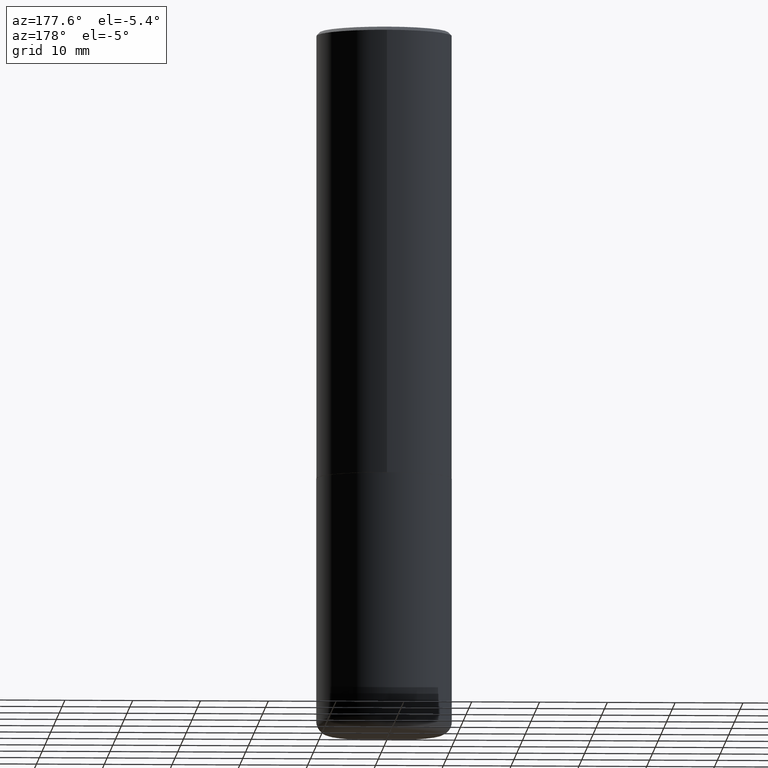
[diagram: clean part render]
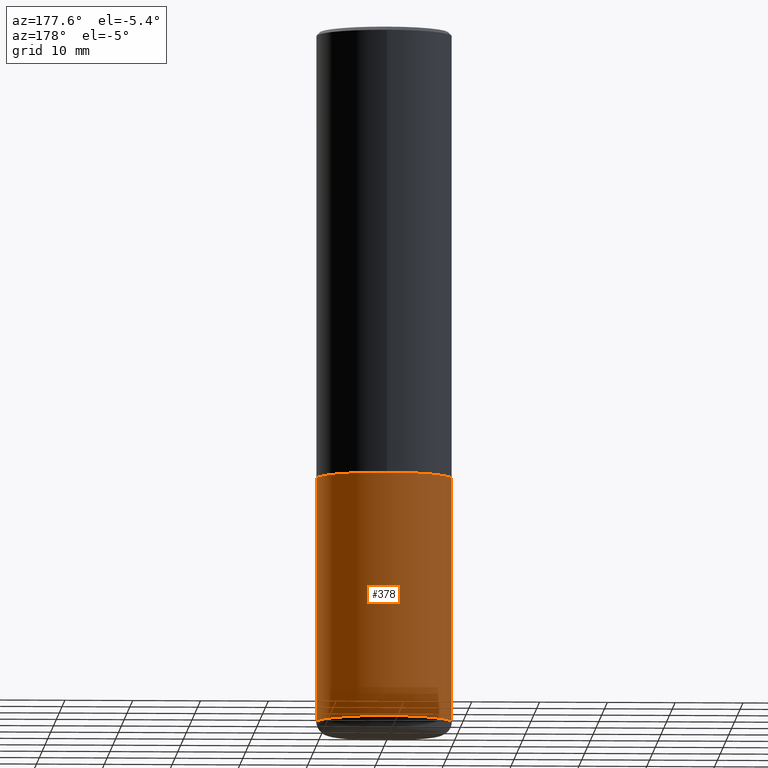
[diagram: same view with one face highlighted and labeled with its STEP entity id]
A machine part, auxiliary view. The second image highlights one B-rep face of the part: STEP entity #378.
In plain terms, the highlighted cylindrical surface (partial cylindrical patch) has radius 10 mm, axis along (-0, 0, 1).
Its self-contained STEP definition (entity closure, byte-faithful):
#10 = DIRECTION ( 'NONE',  ( -2.445468806185136877E-29, 3.491481338843145188E-15, 1.000000000000000000 ) ) ;
#11 = AXIS2_PLACEMENT_3D ( 'NONE', #54, #360, #122 ) ;
#12 = LINE ( 'NONE', #38, #92 ) ;
#15 = VECTOR ( 'NONE', #397, 39.37007874015748143 ) ;
#20 = ORIENTED_EDGE ( 'NONE', *, *, #222, .T. ) ;
#26 = CARTESIAN_POINT ( 'NONE',  ( -0.3937000000000000499, -8.749271185000653235E-15, -2.598400000000000265 ) ) ;
#27 = CIRCLE ( 'NONE', #74, 0.3937000000000000499 ) ;
#38 = CARTESIAN_POINT ( 'NONE',  ( -0.3937000000000000499, 2.797406750687514786E-15, -1.936584745033356735E-29 ) ) ;
#42 = CARTESIAN_POINT ( 'NONE',  ( 0.3937000000000000499, -2.749192406205083217E-15, 1.919750796630860172E-29 ) ) ;
#43 = CARTESIAN_POINT ( 'NONE',  ( 0.3936999999999999389, -1.677028316673138822E-14, -4.015800000000000480 ) ) ;
#44 = CARTESIAN_POINT ( 'NONE',  ( 0.3937000000000000499, -1.182145751705511584E-14, -2.598400000000000265 ) ) ;
#46 = ORIENTED_EDGE ( 'NONE', *, *, #261, .F. ) ;
#54 = CARTESIAN_POINT ( 'NONE',  ( 0.000000000000000000, 0.000000000000000000, 0.000000000000000000 ) ) ;
#55 = DIRECTION ( 'NONE',  ( 1.000000000000000000, -6.982962677686267499E-15, 0.000000000000000000 ) ) ;
#60 = CARTESIAN_POINT ( 'NONE',  ( -0.3936999999999999389, -1.122368400983879100E-14, -4.015800000000000480 ) ) ;
#61 = CARTESIAN_POINT ( 'NONE',  ( 6.354306145991459756E-29, -9.072265110850031044E-15, -2.598400000000000265 ) ) ;
#74 = AXIS2_PLACEMENT_3D ( 'NONE', #61, #150, #55 ) ;
#75 = LINE ( 'NONE', #42, #15 ) ;
#92 = VECTOR ( 'NONE', #10, 39.37007874015748143 ) ;
#116 = ORIENTED_EDGE ( 'NONE', *, *, #128, .F. ) ;
#122 = DIRECTION ( 'NONE',  ( 1.000000000000000000, -6.982962677686265922E-15, 4.876176775795935793E-29 ) ) ;
#128 = EDGE_CURVE ( 'NONE', #329, #143, #27, .T. ) ;
#143 = VERTEX_POINT ( 'NONE', #26 ) ;
#150 = DIRECTION ( 'NONE',  ( -2.445468806185136597E-29, 3.491481338843145583E-15, 1.000000000000000000 ) ) ;
#181 = EDGE_CURVE ( 'NONE', #285, #403, #381, .T. ) ;
#207 = EDGE_LOOP ( 'NONE', ( #321, #20, #116, #46 ) ) ;
#222 = EDGE_CURVE ( 'NONE', #403, #143, #12, .T. ) ;
#228 = AXIS2_PLACEMENT_3D ( 'NONE', #366, #332, #232 ) ;
#232 = DIRECTION ( 'NONE',  ( 1.000000000000000000, -6.982962677686267499E-15, 0.000000000000000000 ) ) ;
#261 = EDGE_CURVE ( 'NONE', #285, #329, #75, .T. ) ;
#273 = FACE_OUTER_BOUND ( 'NONE', #207, .T. ) ;
#285 = VERTEX_POINT ( 'NONE', #43 ) ;
#319 = CYLINDRICAL_SURFACE ( 'NONE', #11, 0.3937000000000000499 ) ;
#321 = ORIENTED_EDGE ( 'NONE', *, *, #181, .T. ) ;
#329 = VERTEX_POINT ( 'NONE', #44 ) ;
#332 = DIRECTION ( 'NONE',  ( -2.445468806185136597E-29, 3.491481338843145583E-15, 1.000000000000000000 ) ) ;
#360 = DIRECTION ( 'NONE',  ( -2.445468806185136597E-29, 3.491481338843145583E-15, 1.000000000000000000 ) ) ;
#366 = CARTESIAN_POINT ( 'NONE',  ( 9.820513631878272860E-29, -1.402109076052630500E-14, -4.015800000000000480 ) ) ;
#378 = ADVANCED_FACE ( 'NONE', ( #273 ), #319, .T. ) ;
#381 = CIRCLE ( 'NONE', #228, 0.3937000000000000499 ) ;
#397 = DIRECTION ( 'NONE',  ( -2.445468806185136877E-29, 3.491481338843145188E-15, 1.000000000000000000 ) ) ;
#403 = VERTEX_POINT ( 'NONE', #60 ) ;